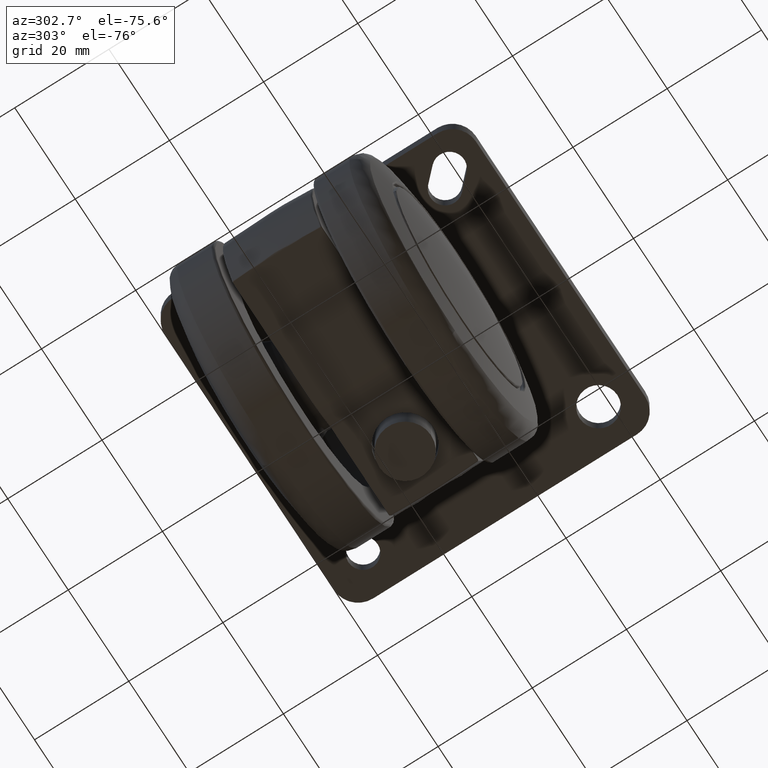
[diagram: clean part render]
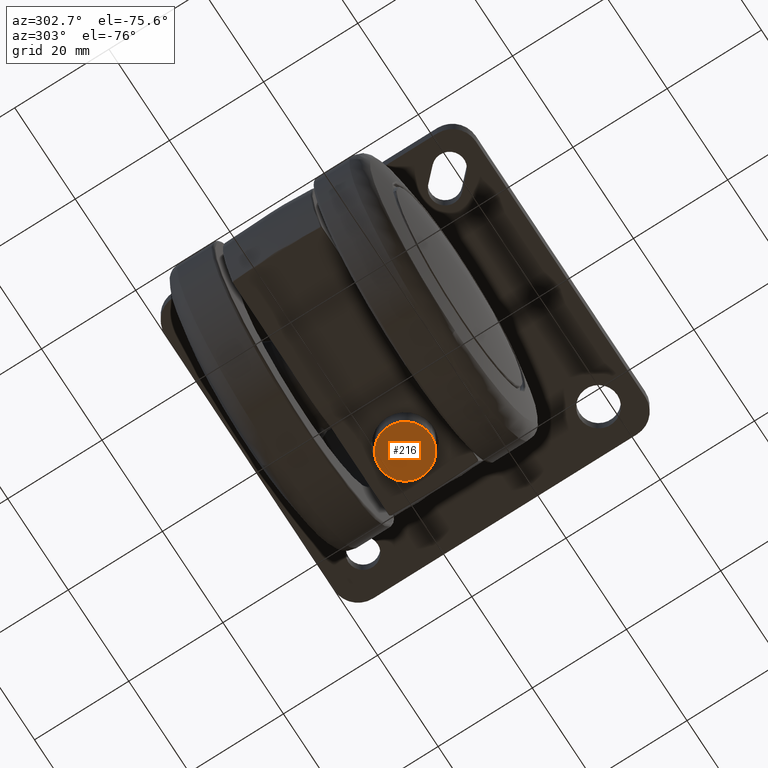
[diagram: same view with one face highlighted and labeled with its STEP entity id]
A machine part, auxiliary view. The second image highlights one B-rep face of the part: STEP entity #216.
In plain terms, the highlighted planar face has unit normal (-0, -0, -1).
Its self-contained STEP definition (entity closure, byte-faithful):
#216=ADVANCED_FACE('',(#920),#919,.T.);
#919=PLANE('',#2741);
#920=FACE_OUTER_BOUND('',#2742,.T.);
#2738=CARTESIAN_POINT('',(-1.14315353300E+01,6.52000000000E+01,-1.26500000000E+01));
#2739=DIRECTION('',(-6.79383115546E-30,1.00000000000E+00,3.49148133884E-15));
#2740=DIRECTION('',(-9.99200722163E-16,-3.49148133884E-15,1.00000000000E+00));
#2741=AXIS2_PLACEMENT_3D('',#2738,#2739,#2740);
#2742=EDGE_LOOP('',(#6379,#6380));
#6379=ORIENTED_EDGE('',*,*,#6954,.F.);
#6380=ORIENTED_EDGE('',*,*,#6955,.F.);
#6954=EDGE_CURVE('',#8138,#8139,#8140,.T.);
#6955=EDGE_CURVE('',#8139,#8138,#8146,.T.);
#8138=VERTEX_POINT('',#10081);
#8139=VERTEX_POINT('',#10082);
#8140=CIRCLE('',#10086,5.50000000000E+00);
#8146=CIRCLE('',#10090,5.50000000000E+00);
#10081=CARTESIAN_POINT('',(5.62512999143E-15,6.52000000000E+01,-5.50000000000E+00));
#10082=CARTESIAN_POINT('',(-4.82207047729E-15,6.52000000000E+01,5.50000000000E+00));
#10083=CARTESIAN_POINT('',(0.00000000000E+00,6.52000000000E+01,2.28983498829E-13));
#10084=DIRECTION('',(5.88686707918E-30,-1.00000000000E+00,-2.58379176640E-15));
#10085=DIRECTION('',(-9.99200722163E-16,-2.58379176640E-15,1.00000000000E+00));
#10086=AXIS2_PLACEMENT_3D('',#10083,#10084,#10085);
#10087=CARTESIAN_POINT('',(0.00000000000E+00,6.52000000000E+01,2.28983498829E-13));
#10088=DIRECTION('',(5.88686707918E-30,-1.00000000000E+00,-2.58379176640E-15));
#10089=DIRECTION('',(-9.99200722163E-16,-2.58379176640E-15,1.00000000000E+00));
#10090=AXIS2_PLACEMENT_3D('',#10087,#10088,#10089);